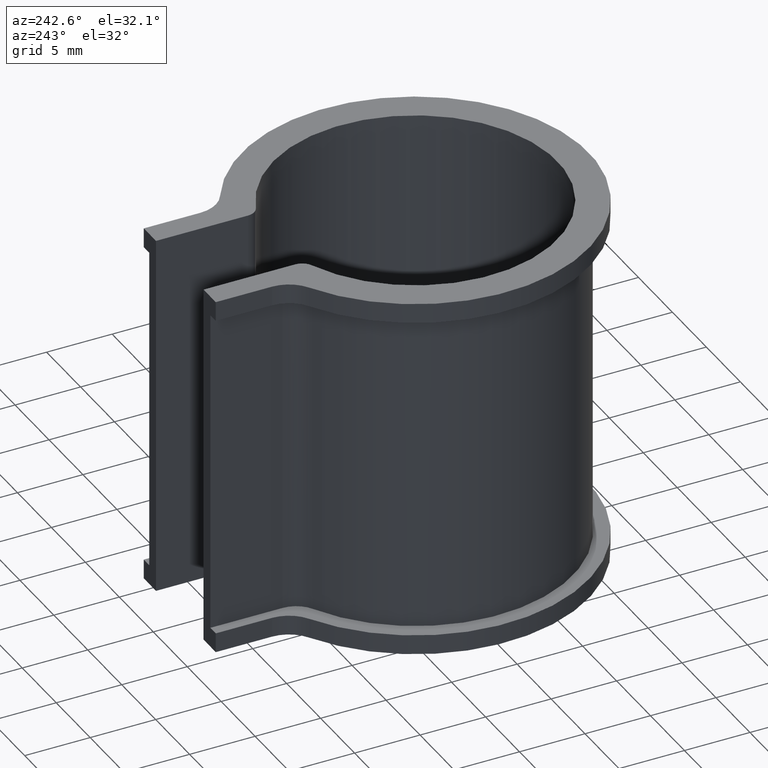
[diagram: clean part render]
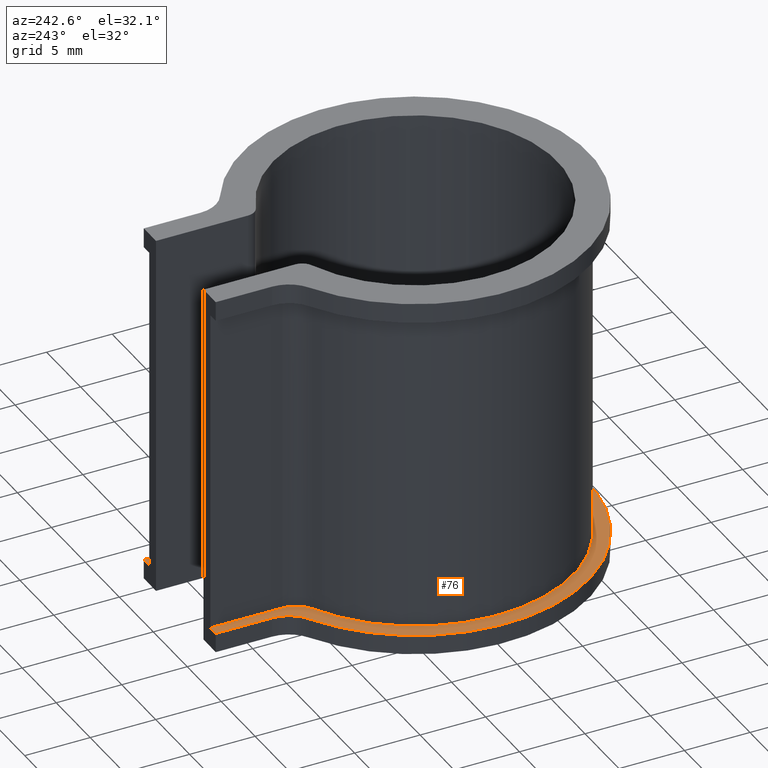
[diagram: same view with one face highlighted and labeled with its STEP entity id]
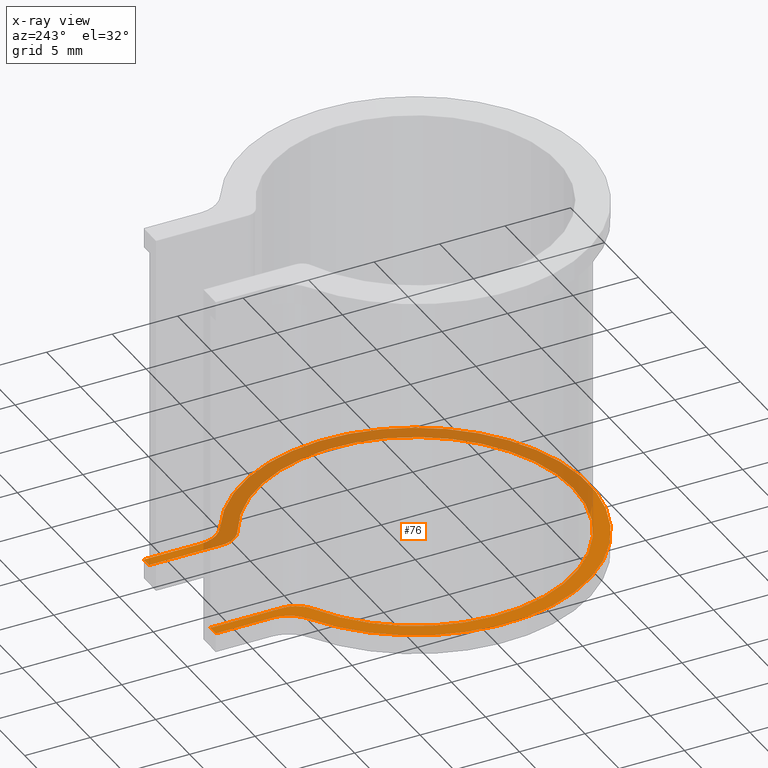
[diagram: x-ray of the same camera — body ghosted, the highlighted face saturated]
A machine part, auxiliary view. The second image highlights one B-rep face of the part: STEP entity #76.
The next image is the same camera in x-ray: the body ghosted, the highlighted face saturated — about 49% of this face is hidden behind the body in this view.
In plain terms, the highlighted planar face has unit normal (0, 0, 1).
Its self-contained STEP definition (entity closure, byte-faithful):
#76 = ADVANCED_FACE( '', ( #104 ), #105, .T. );
#104 = FACE_OUTER_BOUND( '', #156, .T. );
#105 = PLANE( '', #157 );
#156 = EDGE_LOOP( '', ( #213, #214, #215, #216, #217, #218, #219, #220, #221, #222, #223, #224 ) );
#157 = AXIS2_PLACEMENT_3D( '', #225, #226, #227 );
#213 = ORIENTED_EDGE( '', *, *, #432, .F. );
#214 = ORIENTED_EDGE( '', *, *, #433, .T. );
#215 = ORIENTED_EDGE( '', *, *, #434, .F. );
#216 = ORIENTED_EDGE( '', *, *, #435, .T. );
#217 = ORIENTED_EDGE( '', *, *, #436, .T. );
#218 = ORIENTED_EDGE( '', *, *, #437, .T. );
#219 = ORIENTED_EDGE( '', *, *, #438, .T. );
#220 = ORIENTED_EDGE( '', *, *, #439, .T. );
#221 = ORIENTED_EDGE( '', *, *, #440, .T. );
#222 = ORIENTED_EDGE( '', *, *, #441, .T. );
#223 = ORIENTED_EDGE( '', *, *, #442, .F. );
#224 = ORIENTED_EDGE( '', *, *, #443, .T. );
#225 = CARTESIAN_POINT( '', ( 0.000000000000000, 1.38777878078145E-014, -25.0000000000000 ) );
#226 = DIRECTION( '', ( 0.000000000000000, 0.000000000000000, 1.00000000000000 ) );
#227 = DIRECTION( '', ( 0.000000000000000, 1.00000000000000, 0.000000000000000 ) );
#432 = EDGE_CURVE( '', #508, #509, #510, .T. );
#433 = EDGE_CURVE( '', #508, #511, #512, .T. );
#434 = EDGE_CURVE( '', #513, #511, #514, .T. );
#435 = EDGE_CURVE( '', #513, #515, #516, .T. );
#436 = EDGE_CURVE( '', #515, #517, #518, .T. );
#437 = EDGE_CURVE( '', #517, #519, #520, .F. );
#438 = EDGE_CURVE( '', #519, #521, #522, .T. );
#439 = EDGE_CURVE( '', #521, #523, #524, .F. );
#440 = EDGE_CURVE( '', #523, #525, #526, .T. );
#441 = EDGE_CURVE( '', #525, #527, #528, .T. );
#442 = EDGE_CURVE( '', #529, #527, #530, .T. );
#443 = EDGE_CURVE( '', #529, #509, #531, .T. );
#508 = VERTEX_POINT( '', #632 );
#509 = VERTEX_POINT( '', #633 );
#510 = CIRCLE( '', #634, 12.0500000000000 );
#511 = VERTEX_POINT( '', #635 );
#512 = CIRCLE( '', #636, 2.00000000000000 );
#513 = VERTEX_POINT( '', #637 );
#514 = LINE( '', #638, #639 );
#515 = VERTEX_POINT( '', #640 );
#516 = LINE( '', #641, #642 );
#517 = VERTEX_POINT( '', #643 );
#518 = LINE( '', #644, #645 );
#519 = VERTEX_POINT( '', #646 );
#520 = CIRCLE( '', #647, 2.50000000000000 );
#521 = VERTEX_POINT( '', #648 );
#522 = CIRCLE( '', #649, 13.2500000000000 );
#523 = VERTEX_POINT( '', #650 );
#524 = CIRCLE( '', #651, 2.50000000000000 );
#525 = VERTEX_POINT( '', #652 );
#526 = LINE( '', #653, #654 );
#527 = VERTEX_POINT( '', #655 );
#528 = LINE( '', #656, #657 );
#529 = VERTEX_POINT( '', #658 );
#530 = LINE( '', #659, #660 );
#531 = CIRCLE( '', #661, 2.00000000000000 );
#632 = CARTESIAN_POINT( '', ( -5.57473309608540, 10.6829233315329, -25.0000000000000 ) );
#633 = CARTESIAN_POINT( '', ( 5.57473309608541, 10.6829233315329, -25.0000000000000 ) );
#634 = AXIS2_PLACEMENT_3D( '', #792, #793, #794 );
#635 = CARTESIAN_POINT( '', ( -4.49999999999999, 12.4560226396711, -25.0000000000000 ) );
#636 = AXIS2_PLACEMENT_3D( '', #795, #796, #797 );
#637 = CARTESIAN_POINT( '', ( -4.50000000000000, 17.9782154210768, -25.0000000000000 ) );
#638 = CARTESIAN_POINT( '', ( -4.49999999999999, 17.9782154210768, -25.0000000000000 ) );
#639 = VECTOR( '', #798, 1000.00000000000 );
#640 = CARTESIAN_POINT( '', ( -5.30000000000001, 17.9782154210768, -25.0000000000000 ) );
#641 = CARTESIAN_POINT( '', ( -3.50000000000000, 17.9782154210768, -25.0000000000000 ) );
#642 = VECTOR( '', #799, 1000.00000000000 );
#643 = CARTESIAN_POINT( '', ( -5.30000000000000, 13.6829273183775, -25.0000000000000 ) );
#644 = CARTESIAN_POINT( '', ( -5.30000000000000, 17.9782154210768, -25.0000000000000 ) );
#645 = VECTOR( '', #800, 1000.00000000000 );
#646 = CARTESIAN_POINT( '', ( -6.56190476190477, 11.5110340932382, -25.0000000000000 ) );
#647 = AXIS2_PLACEMENT_3D( '', #801, #802, #803 );
#648 = CARTESIAN_POINT( '', ( 6.56190476190477, 11.5110340932382, -25.0000000000000 ) );
#649 = AXIS2_PLACEMENT_3D( '', #804, #805, #806 );
#650 = CARTESIAN_POINT( '', ( 5.30000000000000, 13.6829273183775, -25.0000000000000 ) );
#651 = AXIS2_PLACEMENT_3D( '', #807, #808, #809 );
#652 = CARTESIAN_POINT( '', ( 5.30000000000000, 17.9782154210768, -25.0000000000000 ) );
#653 = CARTESIAN_POINT( '', ( 5.30000000000000, 12.1438255916330, -25.0000000000000 ) );
#654 = VECTOR( '', #810, 1000.00000000000 );
#655 = CARTESIAN_POINT( '', ( 4.50000000000000, 17.9782154210768, -25.0000000000000 ) );
#656 = CARTESIAN_POINT( '', ( 5.30000000000003, 17.9782154210768, -25.0000000000000 ) );
#657 = VECTOR( '', #811, 1000.00000000000 );
#658 = CARTESIAN_POINT( '', ( 4.50000000000001, 12.4560226396711, -25.0000000000000 ) );
#659 = CARTESIAN_POINT( '', ( 4.50000000000001, 11.1782154210768, -25.0000000000000 ) );
#660 = VECTOR( '', #812, 1000.00000000000 );
#661 = AXIS2_PLACEMENT_3D( '', #813, #814, #815 );
#792 = CARTESIAN_POINT( '', ( 0.000000000000000, 0.000000000000000, -25.0000000000000 ) );
#793 = DIRECTION( '', ( 0.000000000000000, 0.000000000000000, 1.00000000000000 ) );
#794 = DIRECTION( '', ( 1.00000000000000, 0.000000000000000, 0.000000000000000 ) );
#795 = CARTESIAN_POINT( '', ( -6.49999999999999, 12.4560226396711, -25.0000000000000 ) );
#796 = DIRECTION( '', ( 0.000000000000000, 0.000000000000000, 1.00000000000000 ) );
#797 = DIRECTION( '', ( 1.00000000000000, 0.000000000000000, 0.000000000000000 ) );
#798 = DIRECTION( '', ( -1.11022302462516E-016, -1.00000000000000, 0.000000000000000 ) );
#799 = DIRECTION( '', ( -1.00000000000000, 0.000000000000000, 0.000000000000000 ) );
#800 = DIRECTION( '', ( -6.12303176911189E-017, -1.00000000000000, 0.000000000000000 ) );
#801 = CARTESIAN_POINT( '', ( -7.80000000000000, 13.6829273183775, -25.0000000000000 ) );
#802 = DIRECTION( '', ( 0.000000000000000, 0.000000000000000, 1.00000000000000 ) );
#803 = DIRECTION( '', ( 1.00000000000000, 0.000000000000000, 0.000000000000000 ) );
#804 = CARTESIAN_POINT( '', ( 0.000000000000000, 1.38777878078145E-014, -25.0000000000000 ) );
#805 = DIRECTION( '', ( 0.000000000000000, 0.000000000000000, 1.00000000000000 ) );
#806 = DIRECTION( '', ( 1.00000000000000, 0.000000000000000, 0.000000000000000 ) );
#807 = CARTESIAN_POINT( '', ( 7.80000000000001, 13.6829273183775, -25.0000000000000 ) );
#808 = DIRECTION( '', ( 0.000000000000000, 0.000000000000000, 1.00000000000000 ) );
#809 = DIRECTION( '', ( 1.00000000000000, 0.000000000000000, 0.000000000000000 ) );
#810 = DIRECTION( '', ( 6.12303176911189E-017, 1.00000000000000, 0.000000000000000 ) );
#811 = DIRECTION( '', ( -1.00000000000000, 0.000000000000000, 0.000000000000000 ) );
#812 = DIRECTION( '', ( 1.11022302462516E-016, 1.00000000000000, 0.000000000000000 ) );
#813 = CARTESIAN_POINT( '', ( 6.50000000000001, 12.4560226396711, -25.0000000000000 ) );
#814 = DIRECTION( '', ( 0.000000000000000, 0.000000000000000, 1.00000000000000 ) );
#815 = DIRECTION( '', ( 1.00000000000000, 0.000000000000000, 0.000000000000000 ) );